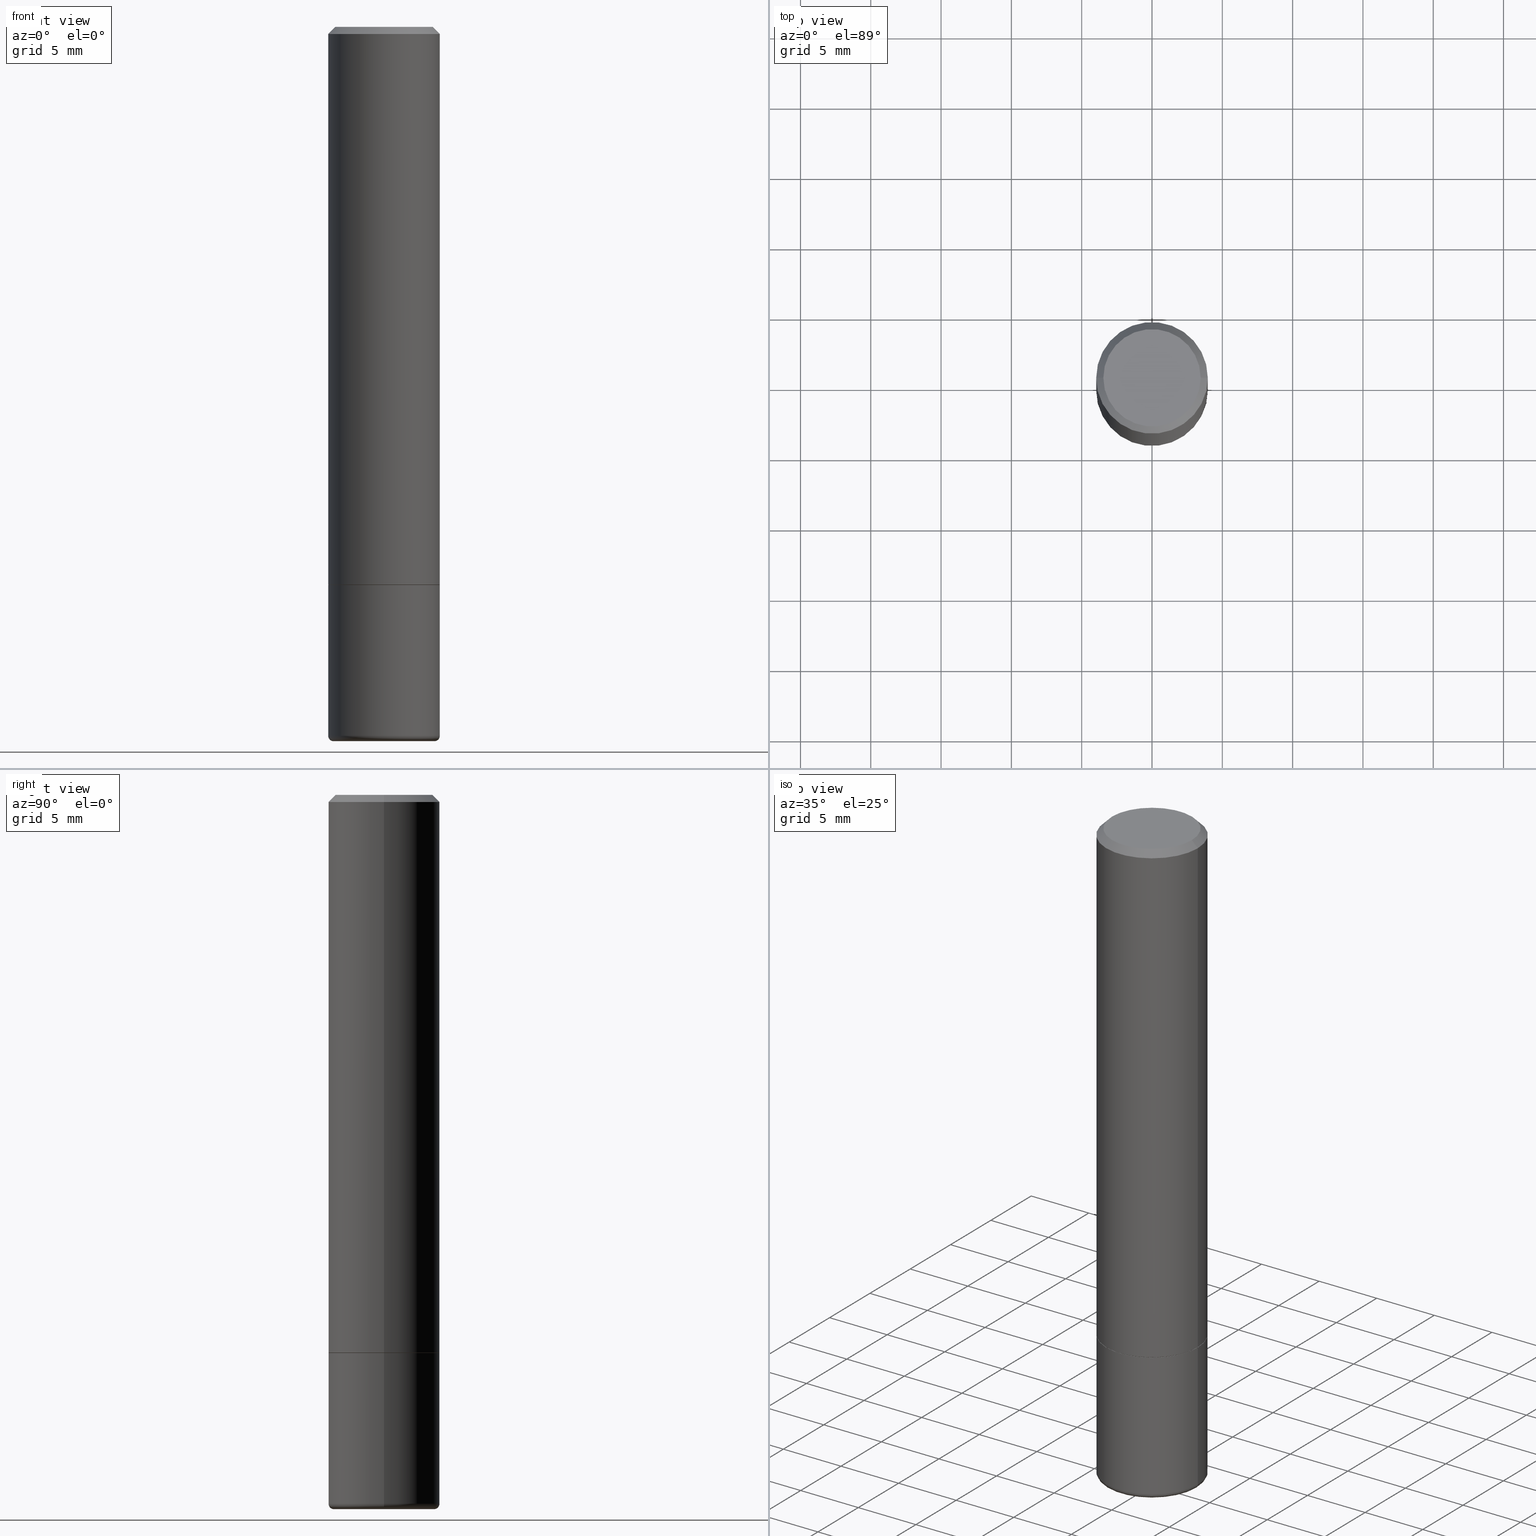
[diagram: canonical four-view strip — front | top / right | iso, engineering-drawing reading convention]
A machine part, canonical four-view strip (front | top / right | iso — engineering-drawing reading convention). The complete STEP part file that produces these views, byte-faithful:
ISO-10303-21;
HEADER;
FILE_DESCRIPTION (( 'STEP AP203' ),
    '1' );
FILE_NAME ('32619.STEP',
    '2022-04-26T19:40:28',
    ( '' ),
    ( '' ),
    'SwSTEP 2.0',
    'SolidWorks 2022',
    '' );
FILE_SCHEMA (( 'CONFIG_CONTROL_DESIGN' ));
ENDSEC;

DATA;
#1 = CARTESIAN_POINT ( 'NONE',  ( 0.1562500000000000000, -6.546527510330894763E-15, -1.562500000000000000 ) ) ;
#2 = ORIENTED_EDGE ( 'NONE', *, *, #76, .F. ) ;
#3 = DATE_TIME_ROLE ( 'classification_date' ) ;
#4 = DIRECTION ( 'NONE',  ( 1.000000000000000000, -6.982962677686268288E-15, 0.000000000000000000 ) ) ;
#5 = CYLINDRICAL_SURFACE ( 'NONE', #397, 0.1562499999999999167 ) ;
#6 = AXIS2_PLACEMENT_3D ( 'NONE', #254, #223, #181 ) ;
#7 = DIRECTION ( 'NONE',  ( 1.000000000000000000, -6.982962677686269077E-15, 0.000000000000000000 ) ) ;
#8 = APPLICATION_CONTEXT ( 'configuration controlled 3d designs of mechanical parts and assemblies' ) ;
#9 = DIRECTION ( 'NONE',  ( 1.000000000000000000, -6.982962677686269077E-15, 0.000000000000000000 ) ) ;
#10 = PLANE ( 'NONE',  #211 ) ;
#11 = ORIENTED_EDGE ( 'NONE', *, *, #398, .T. ) ;
#12 = CARTESIAN_POINT ( 'NONE',  ( 3.821045009664275932E-29, -5.455439591942415589E-15, -1.562500000000000000 ) ) ;
#13 = DIRECTION ( 'NONE',  ( -2.445468806185136597E-29, 3.491481338843145583E-15, 1.000000000000000000 ) ) ;
#14 = ORIENTED_EDGE ( 'NONE', *, *, #31, .T. ) ;
#15 = CARTESIAN_POINT ( 'NONE',  ( 4.854255580277496436E-29, -6.930590457603643692E-15, -1.985000000000000098 ) ) ;
#16 = PERSON_AND_ORGANIZATION_ROLE ( 'creator' ) ;
#17 = CARTESIAN_POINT ( 'NONE',  ( -0.1412500000000000422, -5.926948843342502274E-15, -1.985000000000000098 ) ) ;
#18 = CIRCLE ( 'NONE', #272, 0.1562499999999998057 ) ;
#19 =( LENGTH_UNIT ( ) NAMED_UNIT ( * ) SI_UNIT ( $, .METRE. ) );
#20 = APPROVAL_DATE_TIME ( #265, #406 ) ;
#21 = ORIENTED_EDGE ( 'NONE', *, *, #234, .T. ) ;
#22 =( NAMED_UNIT ( * ) PLANE_ANGLE_UNIT ( ) SI_UNIT ( $, .RADIAN. ) );
#23 = AXIS2_PLACEMENT_3D ( 'NONE', #215, #37, #176 ) ;
#24 = CC_DESIGN_PERSON_AND_ORGANIZATION_ASSIGNMENT ( #159, #295, ( #146 ) ) ;
#25 = ORIENTED_EDGE ( 'NONE', *, *, #282, .F. ) ;
#26 = DIRECTION ( 'NONE',  ( 2.445468806185136597E-29, -3.491481338843145583E-15, -1.000000000000000000 ) ) ;
#27 = EDGE_LOOP ( 'NONE', ( #52, #81, #305, #336 ) ) ;
#28 = APPROVAL_DATE_TIME ( #69, #212 ) ;
#29 = DIRECTION ( 'NONE',  ( 1.000000000000000000, -6.982962677686266711E-15, 4.876176775795936353E-29 ) ) ;
#30 = AXIS2_PLACEMENT_3D ( 'NONE', #220, #147, #46 ) ;
#31 = EDGE_CURVE ( 'NONE', #388, #302, #280, .T. ) ;
#32 = CONICAL_SURFACE ( 'NONE', #333, 0.1562499999999998057, 0.7853981633974479459 ) ;
#33 = DIRECTION ( 'NONE',  ( -2.445468806185136597E-29, 3.491481338843145583E-15, 1.000000000000000000 ) ) ;
#34 = ORIENTED_EDGE ( 'NONE', *, *, #54, .T. ) ;
#35 = CARTESIAN_POINT ( 'NONE',  ( 2.106344187118886594E-18, -6.974362310717180636E-15, -1.997536756999549024 ) ) ;
#36 = DIRECTION ( 'NONE',  ( 2.445468806185136597E-29, -3.491481338843145583E-15, -1.000000000000000000 ) ) ;
#37 = DIRECTION ( 'NONE',  ( -2.445468806185136597E-29, 3.491481338843145583E-15, 1.000000000000000000 ) ) ;
#38 = LINE ( 'NONE', #381, #87 ) ;
#39 = ORIENTED_EDGE ( 'NONE', *, *, #67, .F. ) ;
#40 = CARTESIAN_POINT ( 'NONE',  ( 4.890937612370279289E-31, -6.982962677686299005E-17, -0.02000000000000002470 ) ) ;
#41 = DIRECTION ( 'NONE',  ( 1.000000000000000000, -6.982962677686265133E-15, 4.876176775795935232E-29 ) ) ;
#42 = AXIS2_PLACEMENT_3D ( 'NONE', #231, #292, #53 ) ;
#43 = CC_DESIGN_PERSON_AND_ORGANIZATION_ASSIGNMENT ( #258, #374, ( #262 ) ) ;
#44 = ORIENTED_EDGE ( 'NONE', *, *, #415, .F. ) ;
#45 = CARTESIAN_POINT ( 'NONE',  ( 0.1562500000000000000, -1.091087918388479174E-15, 7.619026212181150377E-30 ) ) ;
#46 = DIRECTION ( 'NONE',  ( 1.000000000000000000, -6.982962677686266711E-15, 4.876176775795936353E-29 ) ) ;
#47 = EDGE_CURVE ( 'NONE', #117, #201, #264, .T. ) ;
#48 = DIRECTION ( 'NONE',  ( -2.445468806185136597E-29, 3.491481338843145583E-15, 1.000000000000000000 ) ) ;
#49 = ORIENTED_EDGE ( 'NONE', *, *, #373, .T. ) ;
#50 = AXIS2_PLACEMENT_3D ( 'NONE', #216, #100, #4 ) ;
#51 = DIRECTION ( 'NONE',  ( -2.445468806185136597E-29, 3.491481338843145583E-15, 1.000000000000000000 ) ) ;
#52 = ORIENTED_EDGE ( 'NONE', *, *, #168, .F. ) ;
#53 = DIRECTION ( 'NONE',  ( 1.000000000000000000, -6.982962677686266711E-15, 4.876176775795935232E-29 ) ) ;
#54 = EDGE_CURVE ( 'NONE', #414, #363, #73, .T. ) ;
#55 = PERSON_AND_ORGANIZATION ( #90, #404 ) ;
#56 = CIRCLE ( 'NONE', #431, 0.1552499999999999991 ) ;
#57 = CIRCLE ( 'NONE', #111, 0.1562500000000000000 ) ;
#58 = DIRECTION ( 'NONE',  ( 1.000000000000000000, 0.000000000000000000, 0.000000000000000000 ) ) ;
#59 = DATE_AND_TIME ( #91, #307 ) ;
#60 = ORIENTED_EDGE ( 'NONE', *, *, #54, .F. ) ;
#61 = CIRCLE ( 'NONE', #23, 0.1562499999999998057 ) ;
#62 = CIRCLE ( 'NONE', #179, 0.1362499999999997879 ) ;
#63 = CC_DESIGN_APPROVAL ( #212, ( #146 ) ) ;
#64 = DIRECTION ( 'NONE',  ( 2.438088387897960049E-29, -3.491481338843145188E-15, -1.000000000000000000 ) ) ;
#65 = ORIENTED_EDGE ( 'NONE', *, *, #252, .T. ) ;
#66 = DIRECTION ( 'NONE',  ( -2.445468806185136597E-29, 3.491481338843145583E-15, 1.000000000000000000 ) ) ;
#67 = EDGE_CURVE ( 'NONE', #201, #117, #386, .T. ) ;
#68 = CARTESIAN_POINT ( 'NONE',  ( 0.1552499999999999991, -6.539544547653208748E-15, -1.562500000000000000 ) ) ;
#69 = DATE_AND_TIME ( #138, #219 ) ;
#70 = AXIS2_PLACEMENT_3D ( 'NONE', #313, #279, #29 ) ;
#71 = AXIS2_PLACEMENT_3D ( 'NONE', #377, #130, #58 ) ;
#72 = CARTESIAN_POINT ( 'NONE',  ( 1.091087918388517236E-15, 0.1562499999999945322, -1.562500000000000666 ) ) ;
#73 = LINE ( 'NONE', #173, #127 ) ;
#74 = DIRECTION ( 'NONE',  ( 2.445468806185136597E-29, -3.491481338843145583E-15, -1.000000000000000000 ) ) ;
#75 = EDGE_LOOP ( 'NONE', ( #242, #25 ) ) ;
#76 = EDGE_CURVE ( 'NONE', #428, #363, #61, .T. ) ;
#77 = FACE_OUTER_BOUND ( 'NONE', #141, .T. ) ;
#78 = DIRECTION ( 'NONE',  ( -2.445468806185136597E-29, 3.491481338843145583E-15, 1.000000000000000000 ) ) ;
#79 = VECTOR ( 'NONE', #441, 39.37007874015748143 ) ;
#80 = CC_DESIGN_APPROVAL ( #330, ( #191 ) ) ;
#81 = ORIENTED_EDGE ( 'NONE', *, *, #415, .T. ) ;
#82 = CARTESIAN_POINT ( 'NONE',  ( 4.854255580277495315E-29, -6.930590457603642903E-15, -1.984999999999999654 ) ) ;
#83 = ADVANCED_FACE ( 'NONE', ( #358 ), #32, .T. ) ;
#84 = CARTESIAN_POINT ( 'NONE',  ( -0.1552499999999999991, -4.347023540326636866E-15, -1.562500000000000000 ) ) ;
#85 = ORIENTED_EDGE ( 'NONE', *, *, #337, .T. ) ;
#86 = FACE_OUTER_BOUND ( 'NONE', #238, .T. ) ;
#87 = VECTOR ( 'NONE', #405, 39.37007874015748143 ) ;
#88 = APPROVAL_DATE_TIME ( #399, #330 ) ;
#89 = ORIENTED_EDGE ( 'NONE', *, *, #145, .T. ) ;
#90 = PERSON ( 'UNSPECIFIED', 'UNSPECIFIED', 'UNSPECIFIED', ('UNSPECIFIED'), ('UNSPECIFIED'), ('UNSPECIFIED') ) ;
#91 = CALENDAR_DATE ( 2022, 26, 4 ) ;
#92 = DIRECTION ( 'NONE',  ( -1.000000000000000000, 7.105427357601001859E-15, 0.000000000000000000 ) ) ;
#93 = EDGE_LOOP ( 'NONE', ( #108, #261, #34, #357 ) ) ;
#94 =( GEOMETRIC_REPRESENTATION_CONTEXT ( 3 ) GLOBAL_UNCERTAINTY_ASSIGNED_CONTEXT ( ( #155 ) ) GLOBAL_UNIT_ASSIGNED_CONTEXT ( ( #293, #22, #433 ) ) REPRESENTATION_CONTEXT ( 'NONE', 'WORKASPACE' ) );
#95 = SECURITY_CLASSIFICATION_LEVEL ( 'unclassified' ) ;
#96 = MANIFOLD_SOLID_BREP ( 'Body-Move/Copy2[1]', #366 ) ;
#97 = CC_DESIGN_DATE_AND_TIME_ASSIGNMENT ( #260, #126, ( #136 ) ) ;
#98 = EDGE_CURVE ( 'NONE', #284, #117, #158, .T. ) ;
#99 = CALENDAR_DATE ( 2022, 26, 4 ) ;
#100 = DIRECTION ( 'NONE',  ( -2.445468806185136597E-29, 3.491481338843145583E-15, 1.000000000000000000 ) ) ;
#101 = ORIENTED_EDGE ( 'NONE', *, *, #340, .F. ) ;
#102 = VECTOR ( 'NONE', #209, 39.37007874015748143 ) ;
#103 = COORDINATED_UNIVERSAL_TIME_OFFSET ( 5, 0, .BEHIND. ) ;
#104 = CC_DESIGN_SECURITY_CLASSIFICATION ( #146, ( #191 ) ) ;
#105 = FACE_OUTER_BOUND ( 'NONE', #27, .T. ) ;
#106 = CARTESIAN_POINT ( 'NONE',  ( 3.821045009664275932E-29, -5.455439591942415589E-15, -1.562500000000000000 ) ) ;
#107 = DIRECTION ( 'NONE',  ( -1.000000000000000000, 6.982962677686266711E-15, 0.000000000000000000 ) ) ;
#108 = ORIENTED_EDGE ( 'NONE', *, *, #225, .F. ) ;
#109 = CARTESIAN_POINT ( 'NONE',  ( 3.818599540858090890E-29, -5.451948110603571793E-15, -1.561499999999999888 ) ) ;
#110 = AXIS2_PLACEMENT_3D ( 'NONE', #348, #33, #116 ) ;
#111 = AXIS2_PLACEMENT_3D ( 'NONE', #251, #48, #189 ) ;
#112 = FACE_OUTER_BOUND ( 'NONE', #320, .T. ) ;
#113 = DIRECTION ( 'NONE',  ( -0.7071067811865472397, 2.468850131082253905E-15, -0.7071067811865477948 ) ) ;
#114 = CC_DESIGN_PERSON_AND_ORGANIZATION_ASSIGNMENT ( #298, #299, ( #136 ) ) ;
#115 = DIRECTION ( 'NONE',  ( -2.445468806185136597E-29, 3.491481338843145583E-15, 1.000000000000000000 ) ) ;
#116 = DIRECTION ( 'NONE',  ( 1.000000000000000000, -6.982962677686268288E-15, 0.000000000000000000 ) ) ;
#117 = VERTEX_POINT ( 'NONE', #331 ) ;
#118 = ORIENTED_EDGE ( 'NONE', *, *, #168, .T. ) ;
#119 = DIRECTION ( 'NONE',  ( -2.438088387897960049E-29, 3.491481338843145188E-15, 1.000000000000000000 ) ) ;
#120 = COORDINATED_UNIVERSAL_TIME_OFFSET ( 5, 0, .BEHIND. ) ;
#121 = AXIS2_PLACEMENT_3D ( 'NONE', #412, #66, #133 ) ;
#122 = CARTESIAN_POINT ( 'NONE',  ( 0.1552499999999999991, -6.539544547653208748E-15, -1.562500000000000000 ) ) ;
#123 = EDGE_CURVE ( 'NONE', #160, #221, #128, .T. ) ;
#124 = ORIENTED_EDGE ( 'NONE', *, *, #76, .T. ) ;
#125 = DIRECTION ( 'NONE',  ( 1.000000000000000000, -6.982962677686269077E-15, 4.883557194083114022E-29 ) ) ;
#126 = DATE_TIME_ROLE ( 'creation_date' ) ;
#127 = VECTOR ( 'NONE', #113, 39.37007874015748143 ) ;
#128 = CIRCLE ( 'NONE', #360, 0.01499999999999997689 ) ;
#129 = APPROVAL_PERSON_ORGANIZATION ( #193, #406, #202 ) ;
#130 = DIRECTION ( 'NONE',  ( 0.000000000000000000, 0.000000000000000000, 1.000000000000000000 ) ) ;
#131 = LINE ( 'NONE', #437, #378 ) ;
#132 = ORIENTED_EDGE ( 'NONE', *, *, #282, .T. ) ;
#133 = DIRECTION ( 'NONE',  ( 1.000000000000000000, -6.982962677686267499E-15, 0.000000000000000000 ) ) ;
#134 = EDGE_LOOP ( 'NONE', ( #371, #351, #2, #309 ) ) ;
#135 = CONICAL_SURFACE ( 'NONE', #387, 0.1562499999999998057, 0.7853981633974479459 ) ;
#136 = PRODUCT_DEFINITION ( 'UNKNOWN', '', #191, #230 ) ;
#137 = CARTESIAN_POINT ( 'NONE',  ( 3.821045009664275932E-29, -5.455439591942415589E-15, -1.562500000000000000 ) ) ;
#138 = CALENDAR_DATE ( 2022, 26, 4 ) ;
#139 = CYLINDRICAL_SURFACE ( 'NONE', #70, 0.1562500000000000000 ) ;
#140 = ORIENTED_EDGE ( 'NONE', *, *, #434, .F. ) ;
#141 = EDGE_LOOP ( 'NONE', ( #89, #49 ) ) ;
#142 = SHAPE_DEFINITION_REPRESENTATION ( #354, #294 ) ;
#143 = CARTESIAN_POINT ( 'NONE',  ( -0.1409882139034411841, -5.998439265462124813E-15, -1.999997715427345835 ) ) ;
#144 = ORIENTED_EDGE ( 'NONE', *, *, #123, .F. ) ;
#145 = EDGE_CURVE ( 'NONE', #414, #352, #281, .T. ) ;
#146 = SECURITY_CLASSIFICATION ( '', '', #95 ) ;
#147 = DIRECTION ( 'NONE',  ( -2.445468806185136597E-29, 3.491481338843145583E-15, 1.000000000000000000 ) ) ;
#148 = ORIENTED_EDGE ( 'NONE', *, *, #340, .T. ) ;
#149 = DIRECTION ( 'NONE',  ( -6.982962677686266711E-15, -1.000000000000000000, 3.491481338843145583E-15 ) ) ;
#150 = DIRECTION ( 'NONE',  ( 1.000000000000000000, -6.982962677686265922E-15, 4.876176775795935793E-29 ) ) ;
#151 = LINE ( 'NONE', #45, #259 ) ;
#152 = CONICAL_SURFACE ( 'NONE', #436, 2255.510300424564321, 1.553343034274960788 ) ;
#153 = APPROVAL_PERSON_ORGANIZATION ( #55, #330, #233 ) ;
#154 = CARTESIAN_POINT ( 'NONE',  ( -0.1562499999999998057, 1.021258291611614692E-15, -0.02000000000000002470 ) ) ;
#155 = UNCERTAINTY_MEASURE_WITH_UNIT (LENGTH_MEASURE( 1.000000000000000082E-05 ), #293, 'distance_accuracy_value', 'NONE');
#156 = ADVANCED_FACE ( 'NONE', ( #170 ), #135, .T. ) ;
#157 = CC_DESIGN_DATE_AND_TIME_ASSIGNMENT ( #59, #3, ( #146 ) ) ;
#158 = LINE ( 'NONE', #122, #296 ) ;
#159 = PERSON_AND_ORGANIZATION ( #90, #404 ) ;
#160 = VERTEX_POINT ( 'NONE', #143 ) ;
#161 = CONICAL_SURFACE ( 'NONE', #349, 2255.510300424564321, 1.553343034274960788 ) ;
#162 = DIRECTION ( 'NONE',  ( 7.105427357601001859E-15, 1.000000000000000000, -3.491481338843145583E-15 ) ) ;
#163 = ADVANCED_FACE ( 'NONE', ( #410 ), #308, .T. ) ;
#164 = MECHANICAL_CONTEXT ( 'NONE', #8, 'mechanical' ) ;
#165 = AXIS2_PLACEMENT_3D ( 'NONE', #314, #310, #277 ) ;
#166 = AXIS2_PLACEMENT_3D ( 'NONE', #72, #64, #304 ) ;
#167 = LINE ( 'NONE', #439, #102 ) ;
#168 = EDGE_CURVE ( 'NONE', #221, #343, #38, .T. ) ;
#169 = FACE_OUTER_BOUND ( 'NONE', #316, .T. ) ;
#170 = FACE_OUTER_BOUND ( 'NONE', #93, .T. ) ;
#171 = AXIS2_PLACEMENT_3D ( 'NONE', #347, #269, #172 ) ;
#172 = DIRECTION ( 'NONE',  ( 1.000000000000000000, -6.982962677686265133E-15, 4.876176775795935232E-29 ) ) ;
#173 = CARTESIAN_POINT ( 'NONE',  ( -0.1562499999999998057, 1.021258291611614692E-15, -0.02000000000000002470 ) ) ;
#174 = VERTEX_POINT ( 'NONE', #1 ) ;
#175 = CARTESIAN_POINT ( 'NONE',  ( -0.1562500000000000000, -1.650665844065059428E-15, -1.561499999999999888 ) ) ;
#176 = DIRECTION ( 'NONE',  ( 1.000000000000000000, -6.982962677686266711E-15, 0.000000000000000000 ) ) ;
#177 = FACE_OUTER_BOUND ( 'NONE', #432, .T. ) ;
#178 = DIRECTION ( 'NONE',  ( -2.445468806185136597E-29, 3.491481338843145583E-15, 1.000000000000000000 ) ) ;
#179 = AXIS2_PLACEMENT_3D ( 'NONE', #227, #78, #427 ) ;
#180 = CC_DESIGN_APPROVAL ( #406, ( #136 ) ) ;
#181 = DIRECTION ( 'NONE',  ( 1.000000000000000000, -6.982962677686267499E-15, 0.000000000000000000 ) ) ;
#182 = ORIENTED_EDGE ( 'NONE', *, *, #417, .F. ) ;
#183 = DIRECTION ( 'NONE',  ( -1.000000000000000000, 6.982962677686266711E-15, 0.000000000000000000 ) ) ;
#184 = CARTESIAN_POINT ( 'NONE',  ( 4.890937612370279289E-31, -6.982962677686299005E-17, -0.02000000000000002470 ) ) ;
#185 = ORIENTED_EDGE ( 'NONE', *, *, #67, .T. ) ;
#186 = APPLICATION_CONTEXT ( 'configuration controlled 3d designs of mechanical parts and assemblies' ) ;
#187 = EDGE_LOOP ( 'NONE', ( #192, #14, #416 ) ) ;
#188 = CYLINDRICAL_SURFACE ( 'NONE', #30, 0.1562500000000000000 ) ;
#189 = DIRECTION ( 'NONE',  ( 1.000000000000000000, -6.982962677686269077E-15, 0.000000000000000000 ) ) ;
#190 = VECTOR ( 'NONE', #418, 39.37007874015747433 ) ;
#191 = PRODUCT_DEFINITION_FORMATION_WITH_SPECIFIED_SOURCE ( 'ANY', '', #262, .NOT_KNOWN. ) ;
#192 = ORIENTED_EDGE ( 'NONE', *, *, #252, .F. ) ;
#193 = PERSON_AND_ORGANIZATION ( #90, #404 ) ;
#194 = EDGE_CURVE ( 'NONE', #160, #302, #300, .T. ) ;
#195 = LENGTH_MEASURE_WITH_UNIT ( LENGTH_MEASURE( 0.02539999999999999897 ), #19 );
#196 = EDGE_CURVE ( 'NONE', #117, #428, #167, .T. ) ;
#197 = ORIENTED_EDGE ( 'NONE', *, *, #123, .T. ) ;
#198 = PERSON_AND_ORGANIZATION ( #90, #404 ) ;
#199 = CIRCLE ( 'NONE', #249, 0.1552499999999999991 ) ;
#200 = APPROVAL_PERSON_ORGANIZATION ( #206, #212, #346 ) ;
#201 = VERTEX_POINT ( 'NONE', #175 ) ;
#202 = APPROVAL_ROLE ( '' ) ;
#203 = EDGE_LOOP ( 'NONE', ( #11, #197, #140, #101 ) ) ;
#204 = ORIENTED_EDGE ( 'NONE', *, *, #98, .T. ) ;
#205 = CIRCLE ( 'NONE', #6, 0.1409882139034408788 ) ;
#206 = PERSON_AND_ORGANIZATION ( #90, #404 ) ;
#207 = DIRECTION ( 'NONE',  ( -1.000000000000000000, 6.982962677686266711E-15, 0.000000000000000000 ) ) ;
#208 = ADVANCED_FACE ( 'NONE', ( #177 ), #440, .T. ) ;
#209 = DIRECTION ( 'NONE',  ( -2.445468806185136877E-29, 3.491481338843145188E-15, 1.000000000000000000 ) ) ;
#210 = FACE_OUTER_BOUND ( 'NONE', #224, .T. ) ;
#211 = AXIS2_PLACEMENT_3D ( 'NONE', #217, #119, #150 ) ;
#212 = APPROVAL ( #312, 'UNSPECIFIED' ) ;
#213 = ADVANCED_FACE ( 'NONE', ( #105 ), #139, .T. ) ;
#214 = LINE ( 'NONE', #271, #190 ) ;
#215 = CARTESIAN_POINT ( 'NONE',  ( 4.890937612370279289E-31, -6.982962677686299005E-17, -0.02000000000000002470 ) ) ;
#216 = CARTESIAN_POINT ( 'NONE',  ( 3.821045009664275932E-29, -5.455439591942415589E-15, -1.562500000000000000 ) ) ;
#217 = CARTESIAN_POINT ( 'NONE',  ( 3.821045009664275932E-29, -5.455439591942415589E-15, -1.562500000000000000 ) ) ;
#218 = AXIS2_PLACEMENT_3D ( 'NONE', #82, #13, #425 ) ;
#219 = LOCAL_TIME ( 15, 40, 28.00000000000000000, #103 ) ;
#220 = CARTESIAN_POINT ( 'NONE',  ( 0.000000000000000000, 0.000000000000000000, 0.000000000000000000 ) ) ;
#221 = VERTEX_POINT ( 'NONE', #240 ) ;
#222 = FACE_OUTER_BOUND ( 'NONE', #311, .T. ) ;
#223 = DIRECTION ( 'NONE',  ( -2.445468806185136597E-29, 3.491481338843145583E-15, 1.000000000000000000 ) ) ;
#224 = EDGE_LOOP ( 'NONE', ( #380, #21, #248, #288 ) ) ;
#225 = EDGE_CURVE ( 'NONE', #352, #428, #131, .T. ) ;
#226 = CLOSED_SHELL ( 'NONE', ( #285, #163, #83, #156, #390, #208, #369, #370 ) ) ;
#227 = CARTESIAN_POINT ( 'NONE',  ( 0.000000000000000000, 0.000000000000000000, 0.000000000000000000 ) ) ;
#228 = AXIS2_PLACEMENT_3D ( 'NONE', #362, #149, #421 ) ;
#229 = APPLICATION_PROTOCOL_DEFINITION ( 'international standard', 'config_control_design', 1994, #8 ) ;
#230 = DESIGN_CONTEXT ( 'detailed design', #186, 'design' ) ;
#231 = CARTESIAN_POINT ( 'NONE',  ( 0.000000000000000000, 0.000000000000000000, 0.000000000000000000 ) ) ;
#232 = COORDINATED_UNIVERSAL_TIME_OFFSET ( 5, 0, .BEHIND. ) ;
#233 = APPROVAL_ROLE ( '' ) ;
#234 = EDGE_CURVE ( 'NONE', #424, #201, #235, .T. ) ;
#235 = LINE ( 'NONE', #275, #325 ) ;
#236 = AXIS2_PLACEMENT_3D ( 'NONE', #322, #257, #392 ) ;
#237 = CARTESIAN_POINT ( 'NONE',  ( 1.011632132845583691E-27, -1.444342575407622888E-13, -41.36761549715703268 ) ) ;
#238 = EDGE_LOOP ( 'NONE', ( #270, #118, #253, #345 ) ) ;
#239 = DIRECTION ( 'NONE',  ( -2.445468806185136597E-29, 3.491481338843145583E-15, 1.000000000000000000 ) ) ;
#240 = CARTESIAN_POINT ( 'NONE',  ( -0.1562500000000000000, -5.820367432978486362E-15, -1.984999999999999654 ) ) ;
#241 = MANIFOLD_SOLID_BREP ( 'Body-Move/Copy2[2]', #226 ) ;
#242 = ORIENTED_EDGE ( 'NONE', *, *, #274, .F. ) ;
#243 = CONICAL_SURFACE ( 'NONE', #110, 0.1552499999999999991, 0.7853981633974141952 ) ;
#244 = CARTESIAN_POINT ( 'NONE',  ( 1.011632132845583691E-27, -1.444342575407622888E-13, -41.36761549715703268 ) ) ;
#245 = FACE_OUTER_BOUND ( 'NONE', #383, .T. ) ;
#246 = PRODUCT_RELATED_PRODUCT_CATEGORY ( 'detail', '', ( #262 ) ) ;
#247 = CARTESIAN_POINT ( 'NONE',  ( 0.1562500000000000000, -8.021678375992122076E-15, -1.984999999999999654 ) ) ;
#248 = ORIENTED_EDGE ( 'NONE', *, *, #47, .F. ) ;
#249 = AXIS2_PLACEMENT_3D ( 'NONE', #137, #303, #273 ) ;
#250 = TOROIDAL_SURFACE ( 'NONE', #326, 0.1412500000000000422, 0.01499999999999998036 ) ;
#251 = CARTESIAN_POINT ( 'NONE',  ( 4.854255580277495315E-29, -6.930590457603642903E-15, -1.984999999999999654 ) ) ;
#252 = EDGE_CURVE ( 'NONE', #388, #160, #214, .T. ) ;
#253 = ORIENTED_EDGE ( 'NONE', *, *, #382, .F. ) ;
#254 = CARTESIAN_POINT ( 'NONE',  ( 4.890932025519112354E-29, -6.982954701143501552E-15, -1.999997715427345835 ) ) ;
#255 = ADVANCED_FACE ( 'NONE', ( #169 ), #385, .F. ) ;
#256 = ADVANCED_FACE ( 'NONE', ( #112 ), #161, .F. ) ;
#257 = DIRECTION ( 'NONE',  ( 2.438088387897960049E-29, -3.491481338843145188E-15, -1.000000000000000000 ) ) ;
#258 = PERSON_AND_ORGANIZATION ( #90, #404 ) ;
#259 = VECTOR ( 'NONE', #395, 39.37007874015748143 ) ;
#260 = DATE_AND_TIME ( #99, #409 ) ;
#261 = ORIENTED_EDGE ( 'NONE', *, *, #145, .F. ) ;
#262 = PRODUCT ( '32619', '32619', '', ( #164 ) ) ;
#263 = COORDINATED_UNIVERSAL_TIME_OFFSET ( 5, 0, .BEHIND. ) ;
#264 = CIRCLE ( 'NONE', #324, 0.1562500000000000000 ) ;
#265 = DATE_AND_TIME ( #335, #442 ) ;
#266 = DIMENSIONAL_EXPONENTS ( 1.000000000000000000, 0.000000000000000000, 0.000000000000000000, 0.000000000000000000, 0.000000000000000000, 0.000000000000000000, 0.000000000000000000 ) ;
#267 = ADVANCED_FACE ( 'NONE', ( #353 ), #152, .F. ) ;
#268 = EDGE_CURVE ( 'NONE', #201, #363, #344, .T. ) ;
#269 = DIRECTION ( 'NONE',  ( -2.445468806185136597E-29, 3.491481338843145583E-15, 1.000000000000000000 ) ) ;
#270 = ORIENTED_EDGE ( 'NONE', *, *, #434, .T. ) ;
#271 = CARTESIAN_POINT ( 'NONE',  ( -2.106344187021188405E-18, -6.974362310717180636E-15, -1.997536756999549024 ) ) ;
#272 = AXIS2_PLACEMENT_3D ( 'NONE', #184, #319, #287 ) ;
#273 = DIRECTION ( 'NONE',  ( 1.000000000000000000, -6.982962677686268288E-15, 0.000000000000000000 ) ) ;
#274 = EDGE_CURVE ( 'NONE', #284, #424, #199, .T. ) ;
#275 = CARTESIAN_POINT ( 'NONE',  ( -0.1552499999999999991, -4.352321994674860057E-15, -1.562500000000000000 ) ) ;
#276 = ORIENTED_EDGE ( 'NONE', *, *, #196, .T. ) ;
#277 = DIRECTION ( 'NONE',  ( 1.000000000000000000, -6.982962677686269077E-15, 0.000000000000000000 ) ) ;
#278 = ORIENTED_EDGE ( 'NONE', *, *, #225, .T. ) ;
#279 = DIRECTION ( 'NONE',  ( -2.445468806185136597E-29, 3.491481338843145583E-15, 1.000000000000000000 ) ) ;
#280 = LINE ( 'NONE', #35, #402 ) ;
#281 = CIRCLE ( 'NONE', #42, 0.1362499999999997879 ) ;
#282 = EDGE_CURVE ( 'NONE', #424, #284, #56, .T. ) ;
#283 = CARTESIAN_POINT ( 'NONE',  ( 0.000000000000000000, 0.000000000000000000, 0.000000000000000000 ) ) ;
#284 = VERTEX_POINT ( 'NONE', #68 ) ;
#285 = ADVANCED_FACE ( 'NONE', ( #210 ), #243, .T. ) ;
#286 = CARTESIAN_POINT ( 'NONE',  ( 3.821045009664275932E-29, -5.455439591942415589E-15, -1.562500000000000000 ) ) ;
#287 = DIRECTION ( 'NONE',  ( 1.000000000000000000, -6.982962677686266711E-15, 0.000000000000000000 ) ) ;
#288 = ORIENTED_EDGE ( 'NONE', *, *, #98, .F. ) ;
#289 = DIRECTION ( 'NONE',  ( 1.000000000000000000, -6.982962677686269077E-15, 4.883557194083114022E-29 ) ) ;
#290 = CC_DESIGN_PERSON_AND_ORGANIZATION_ASSIGNMENT ( #198, #403, ( #191 ) ) ;
#291 = FACE_OUTER_BOUND ( 'NONE', #203, .T. ) ;
#292 = DIRECTION ( 'NONE',  ( -2.445468806185136597E-29, 3.491481338843145583E-15, 1.000000000000000000 ) ) ;
#293 =( CONVERSION_BASED_UNIT ( 'INCH', #195 ) LENGTH_UNIT ( ) NAMED_UNIT ( #266 ) );
#294 = ADVANCED_BREP_SHAPE_REPRESENTATION ( '32619', ( #96, #241, #71 ), #94 ) ;
#295 = PERSON_AND_ORGANIZATION_ROLE ( 'classification_officer' ) ;
#296 = VECTOR ( 'NONE', #400, 39.37007874015748854 ) ;
#297 = CC_DESIGN_PERSON_AND_ORGANIZATION_ASSIGNMENT ( #401, #16, ( #191 ) ) ;
#298 = PERSON_AND_ORGANIZATION ( #90, #404 ) ;
#299 = PERSON_AND_ORGANIZATION_ROLE ( 'creator' ) ;
#300 = CIRCLE ( 'NONE', #121, 0.1409882139034408788 ) ;
#301 = ADVANCED_FACE ( 'NONE', ( #86 ), #188, .T. ) ;
#302 = VERTEX_POINT ( 'NONE', #391 ) ;
#303 = DIRECTION ( 'NONE',  ( -2.445468806185136597E-29, 3.491481338843145583E-15, 1.000000000000000000 ) ) ;
#304 = DIRECTION ( 'NONE',  ( -1.000000000000000000, 6.982962677686265922E-15, -4.876176775795935793E-29 ) ) ;
#305 = ORIENTED_EDGE ( 'NONE', *, *, #411, .T. ) ;
#306 = CIRCLE ( 'NONE', #367, 0.1562500000000000000 ) ;
#307 = LOCAL_TIME ( 15, 40, 28.00000000000000000, #232 ) ;
#308 = CYLINDRICAL_SURFACE ( 'NONE', #171, 0.1562499999999999167 ) ;
#309 = ORIENTED_EDGE ( 'NONE', *, *, #196, .F. ) ;
#310 = DIRECTION ( 'NONE',  ( -2.445468806185136597E-29, 3.491481338843145583E-15, 1.000000000000000000 ) ) ;
#311 = EDGE_LOOP ( 'NONE', ( #144, #375, #148, #44 ) ) ;
#312 = APPROVAL_STATUS ( 'not_yet_approved' ) ;
#313 = CARTESIAN_POINT ( 'NONE',  ( 0.000000000000000000, 0.000000000000000000, 0.000000000000000000 ) ) ;
#314 = CARTESIAN_POINT ( 'NONE',  ( 3.818599540858090890E-29, -5.451948110603571793E-15, -1.561499999999999888 ) ) ;
#315 = CARTESIAN_POINT ( 'NONE',  ( 0.1362499999999997879, -1.038262645562516547E-15, 6.957025900226685266E-30 ) ) ;
#316 = EDGE_LOOP ( 'NONE', ( #334, #85 ) ) ;
#317 = CIRCLE ( 'NONE', #218, 0.1562500000000000000 ) ;
#318 = CARTESIAN_POINT ( 'NONE',  ( -0.1362499999999997879, 9.863434782231836346E-16, -6.775751096333128673E-30 ) ) ;
#319 = DIRECTION ( 'NONE',  ( -2.445468806185136597E-29, 3.491481338843145583E-15, 1.000000000000000000 ) ) ;
#320 = EDGE_LOOP ( 'NONE', ( #413, #65, #350 ) ) ;
#321 = ORIENTED_EDGE ( 'NONE', *, *, #234, .F. ) ;
#322 = CARTESIAN_POINT ( 'NONE',  ( 9.514286648347523799E-16, 0.1362499999999997879, -4.757143324173778663E-16 ) ) ;
#323 = EDGE_LOOP ( 'NONE', ( #430, #278, #124, #60 ) ) ;
#324 = AXIS2_PLACEMENT_3D ( 'NONE', #109, #178, #7 ) ;
#325 = VECTOR ( 'NONE', #379, 39.37007874015748854 ) ;
#326 = AXIS2_PLACEMENT_3D ( 'NONE', #15, #332, #125 ) ;
#327 = PLANE ( 'NONE',  #236 ) ;
#328 = CALENDAR_DATE ( 2022, 26, 4 ) ;
#329 = APPROVAL_STATUS ( 'not_yet_approved' ) ;
#330 = APPROVAL ( #329, 'UNSPECIFIED' ) ;
#331 = CARTESIAN_POINT ( 'NONE',  ( 0.1562500000000000000, -6.543036028992050967E-15, -1.561499999999999888 ) ) ;
#332 = DIRECTION ( 'NONE',  ( -2.445468806185136597E-29, 3.491481338843145583E-15, 1.000000000000000000 ) ) ;
#333 = AXIS2_PLACEMENT_3D ( 'NONE', #40, #361, #183 ) ;
#334 = ORIENTED_EDGE ( 'NONE', *, *, #382, .T. ) ;
#335 = CALENDAR_DATE ( 2022, 26, 4 ) ;
#336 = ORIENTED_EDGE ( 'NONE', *, *, #337, .F. ) ;
#337 = EDGE_CURVE ( 'NONE', #343, #174, #306, .T. ) ;
#338 = APPLICATION_PROTOCOL_DEFINITION ( 'international standard', 'config_control_design', 1994, #186 ) ;
#339 = VERTEX_POINT ( 'NONE', #247 ) ;
#340 = EDGE_CURVE ( 'NONE', #302, #339, #419, .T. ) ;
#341 = AXIS2_PLACEMENT_3D ( 'NONE', #286, #51, #359 ) ;
#342 = LOCAL_TIME ( 15, 40, 28.00000000000000000, #263 ) ;
#343 = VERTEX_POINT ( 'NONE', #426 ) ;
#344 = LINE ( 'NONE', #389, #79 ) ;
#345 = ORIENTED_EDGE ( 'NONE', *, *, #411, .F. ) ;
#346 = APPROVAL_ROLE ( '' ) ;
#347 = CARTESIAN_POINT ( 'NONE',  ( 0.000000000000000000, 0.000000000000000000, 0.000000000000000000 ) ) ;
#348 = CARTESIAN_POINT ( 'NONE',  ( 3.821045009664275932E-29, -5.455439591942415589E-15, -1.562500000000000000 ) ) ;
#349 = AXIS2_PLACEMENT_3D ( 'NONE', #237, #36, #408 ) ;
#350 = ORIENTED_EDGE ( 'NONE', *, *, #398, .F. ) ;
#351 = ORIENTED_EDGE ( 'NONE', *, *, #268, .T. ) ;
#352 = VERTEX_POINT ( 'NONE', #315 ) ;
#353 = FACE_OUTER_BOUND ( 'NONE', #187, .T. ) ;
#354 = PRODUCT_DEFINITION_SHAPE ( 'NONE', 'NONE',  #136 ) ;
#355 = ORIENTED_EDGE ( 'NONE', *, *, #268, .F. ) ;
#356 = DIRECTION ( 'NONE',  ( 0.7071067811865472397, -7.319954787623254468E-15, -0.7071067811865477948 ) ) ;
#357 = ORIENTED_EDGE ( 'NONE', *, *, #417, .T. ) ;
#358 = FACE_OUTER_BOUND ( 'NONE', #323, .T. ) ;
#359 = DIRECTION ( 'NONE',  ( 1.000000000000000000, -6.982962677686269077E-15, 0.000000000000000000 ) ) ;
#360 = AXIS2_PLACEMENT_3D ( 'NONE', #17, #162, #92 ) ;
#361 = DIRECTION ( 'NONE',  ( 2.445468806185136597E-29, -3.491481338843145583E-15, -1.000000000000000000 ) ) ;
#362 = CARTESIAN_POINT ( 'NONE',  ( 0.1412500000000000422, -7.916933935826830284E-15, -1.985000000000000098 ) ) ;
#363 = VERTEX_POINT ( 'NONE', #154 ) ;
#364 = DIRECTION ( 'NONE',  ( -2.445468806185136597E-29, 3.491481338843145583E-15, 1.000000000000000000 ) ) ;
#365 = CARTESIAN_POINT ( 'NONE',  ( 0.1562499999999998057, -1.141782438928663330E-15, -0.02000000000000002470 ) ) ;
#366 = CLOSED_SHELL ( 'NONE', ( #301, #438, #267, #256, #422, #213, #255 ) ) ;
#367 = AXIS2_PLACEMENT_3D ( 'NONE', #12, #115, #9 ) ;
#368 = FACE_OUTER_BOUND ( 'NONE', #75, .T. ) ;
#369 = ADVANCED_FACE ( 'NONE', ( #368 ), #10, .F. ) ;
#370 = ADVANCED_FACE ( 'NONE', ( #77 ), #327, .F. ) ;
#371 = ORIENTED_EDGE ( 'NONE', *, *, #47, .T. ) ;
#372 = AXIS2_PLACEMENT_3D ( 'NONE', #394, #364, #289 ) ;
#373 = EDGE_CURVE ( 'NONE', #352, #414, #62, .T. ) ;
#374 = PERSON_AND_ORGANIZATION_ROLE ( 'design_owner' ) ;
#375 = ORIENTED_EDGE ( 'NONE', *, *, #194, .T. ) ;
#376 = CARTESIAN_POINT ( 'NONE',  ( 4.890937612370279289E-31, -6.982962677686299005E-17, -0.02000000000000002470 ) ) ;
#377 = CARTESIAN_POINT ( 'NONE',  ( 0.000000000000000000, 0.000000000000000000, 0.000000000000000000 ) ) ;
#378 = VECTOR ( 'NONE', #356, 39.37007874015748143 ) ;
#379 = DIRECTION ( 'NONE',  ( -0.7071067811865232589, 7.493145998870265808E-15, 0.7071067811865715536 ) ) ;
#380 = ORIENTED_EDGE ( 'NONE', *, *, #274, .T. ) ;
#381 = CARTESIAN_POINT ( 'NONE',  ( -0.1562500000000000000, 1.110223024625156540E-15, -7.685836078523291160E-30 ) ) ;
#382 = EDGE_CURVE ( 'NONE', #174, #343, #407, .T. ) ;
#383 = EDGE_LOOP ( 'NONE', ( #355, #185, #276, #182 ) ) ;
#384 = DIRECTION ( 'NONE',  ( 1.000000000000000000, -6.982962677686268288E-15, 0.000000000000000000 ) ) ;
#385 = PLANE ( 'NONE',  #166 ) ;
#386 = CIRCLE ( 'NONE', #165, 0.1562500000000000000 ) ;
#387 = AXIS2_PLACEMENT_3D ( 'NONE', #376, #74, #107 ) ;
#388 = VERTEX_POINT ( 'NONE', #423 ) ;
#389 = CARTESIAN_POINT ( 'NONE',  ( -0.1562499999999999167, 1.110223024625155949E-15, -7.685836078523285555E-30 ) ) ;
#390 = ADVANCED_FACE ( 'NONE', ( #245 ), #5, .T. ) ;
#391 = CARTESIAN_POINT ( 'NONE',  ( 0.1409882139034411841, -7.950204060337446048E-15, -1.999997715427345835 ) ) ;
#392 = DIRECTION ( 'NONE',  ( -1.000000000000000000, 6.982962677686265922E-15, -4.876176775795935793E-29 ) ) ;
#393 = TOROIDAL_SURFACE ( 'NONE', #372, 0.1412500000000000422, 0.01499999999999998036 ) ;
#394 = CARTESIAN_POINT ( 'NONE',  ( 4.854255580277496436E-29, -6.930590457603643692E-15, -1.985000000000000098 ) ) ;
#395 = DIRECTION ( 'NONE',  ( -2.445468806185136877E-29, 3.491481338843145188E-15, 1.000000000000000000 ) ) ;
#396 = DIRECTION ( 'NONE',  ( -2.445468806185136597E-29, 3.491481338843145583E-15, 1.000000000000000000 ) ) ;
#397 = AXIS2_PLACEMENT_3D ( 'NONE', #283, #396, #41 ) ;
#398 = EDGE_CURVE ( 'NONE', #302, #160, #205, .T. ) ;
#399 = DATE_AND_TIME ( #328, #342 ) ;
#400 = DIRECTION ( 'NONE',  ( 0.7071067811865232589, -2.468850131082003836E-15, 0.7071067811865715536 ) ) ;
#401 = PERSON_AND_ORGANIZATION ( #90, #404 ) ;
#402 = VECTOR ( 'NONE', #420, 39.37007874015747433 ) ;
#403 = PERSON_AND_ORGANIZATION_ROLE ( 'design_supplier' ) ;
#404 = ORGANIZATION ( 'UNSPECIFIED', 'UNSPECIFIED', '' ) ;
#405 = DIRECTION ( 'NONE',  ( -2.445468806185136877E-29, 3.491481338843145188E-15, 1.000000000000000000 ) ) ;
#406 = APPROVAL ( #429, 'UNSPECIFIED' ) ;
#407 = CIRCLE ( 'NONE', #341, 0.1562500000000000000 ) ;
#408 = DIRECTION ( 'NONE',  ( -1.000000000000000000, 6.982962677686266711E-15, 0.000000000000000000 ) ) ;
#409 = LOCAL_TIME ( 15, 40, 28.00000000000000000, #435 ) ;
#410 = FACE_OUTER_BOUND ( 'NONE', #134, .T. ) ;
#411 = EDGE_CURVE ( 'NONE', #339, #174, #151, .T. ) ;
#412 = CARTESIAN_POINT ( 'NONE',  ( 4.890932025519112354E-29, -6.982954701143501552E-15, -1.999997715427345835 ) ) ;
#413 = ORIENTED_EDGE ( 'NONE', *, *, #31, .F. ) ;
#414 = VERTEX_POINT ( 'NONE', #318 ) ;
#415 = EDGE_CURVE ( 'NONE', #221, #339, #317, .T. ) ;
#416 = ORIENTED_EDGE ( 'NONE', *, *, #194, .F. ) ;
#417 = EDGE_CURVE ( 'NONE', #363, #428, #18, .T. ) ;
#418 = DIRECTION ( 'NONE',  ( -0.9998476951563914916, 6.920964387254063099E-15, -0.01745240643727605234 ) ) ;
#419 = CIRCLE ( 'NONE', #228, 0.01499999999999997689 ) ;
#420 = DIRECTION ( 'NONE',  ( 0.9998476951563914916, -6.920387862090559512E-15, -0.01745240643727605234 ) ) ;
#421 = DIRECTION ( 'NONE',  ( 1.000000000000000000, -6.982962677686279332E-15, 0.000000000000000000 ) ) ;
#422 = ADVANCED_FACE ( 'NONE', ( #222 ), #393, .T. ) ;
#423 = CARTESIAN_POINT ( 'NONE',  ( 4.886384680735083264E-29, -6.972255966530111052E-15, -1.997536756999549024 ) ) ;
#424 = VERTEX_POINT ( 'NONE', #84 ) ;
#425 = DIRECTION ( 'NONE',  ( 1.000000000000000000, -6.982962677686269077E-15, 0.000000000000000000 ) ) ;
#426 = CARTESIAN_POINT ( 'NONE',  ( -0.1562500000000000000, -5.082792000147872311E-15, -1.562500000000000000 ) ) ;
#427 = DIRECTION ( 'NONE',  ( 1.000000000000000000, -6.982962677686266711E-15, 4.876176775795935232E-29 ) ) ;
#428 = VERTEX_POINT ( 'NONE', #365 ) ;
#429 = APPROVAL_STATUS ( 'not_yet_approved' ) ;
#430 = ORIENTED_EDGE ( 'NONE', *, *, #373, .F. ) ;
#431 = AXIS2_PLACEMENT_3D ( 'NONE', #106, #239, #384 ) ;
#432 = EDGE_LOOP ( 'NONE', ( #321, #132, #204, #39 ) ) ;
#433 =( NAMED_UNIT ( * ) SI_UNIT ( $, .STERADIAN. ) SOLID_ANGLE_UNIT ( ) );
#434 = EDGE_CURVE ( 'NONE', #339, #221, #57, .T. ) ;
#435 = COORDINATED_UNIVERSAL_TIME_OFFSET ( 5, 0, .BEHIND. ) ;
#436 = AXIS2_PLACEMENT_3D ( 'NONE', #244, #26, #207 ) ;
#437 = CARTESIAN_POINT ( 'NONE',  ( 0.1562499999999998057, -1.141782438928663330E-15, -0.02000000000000002470 ) ) ;
#438 = ADVANCED_FACE ( 'NONE', ( #291 ), #250, .T. ) ;
#439 = CARTESIAN_POINT ( 'NONE',  ( 0.1562499999999999167, -1.091087918388478385E-15, 7.619026212181144772E-30 ) ) ;
#440 = CONICAL_SURFACE ( 'NONE', #50, 0.1552499999999999991, 0.7853981633974141952 ) ;
#441 = DIRECTION ( 'NONE',  ( -2.445468806185136877E-29, 3.491481338843145188E-15, 1.000000000000000000 ) ) ;
#442 = LOCAL_TIME ( 15, 40, 28.00000000000000000, #120 ) ;
ENDSEC;
END-ISO-10303-21;
